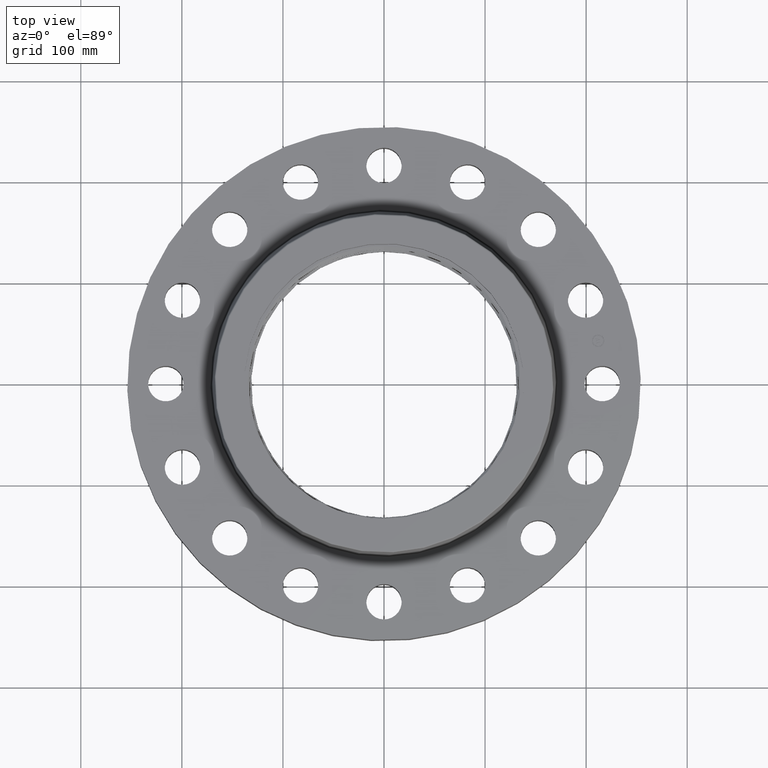
[diagram: clean part render]
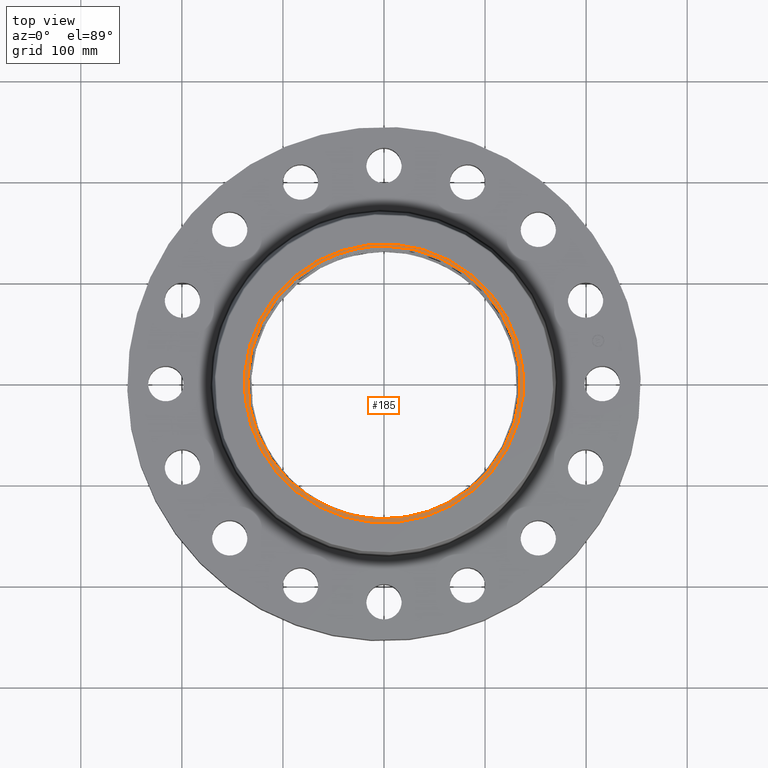
[diagram: same view with one face highlighted and labeled with its STEP entity id]
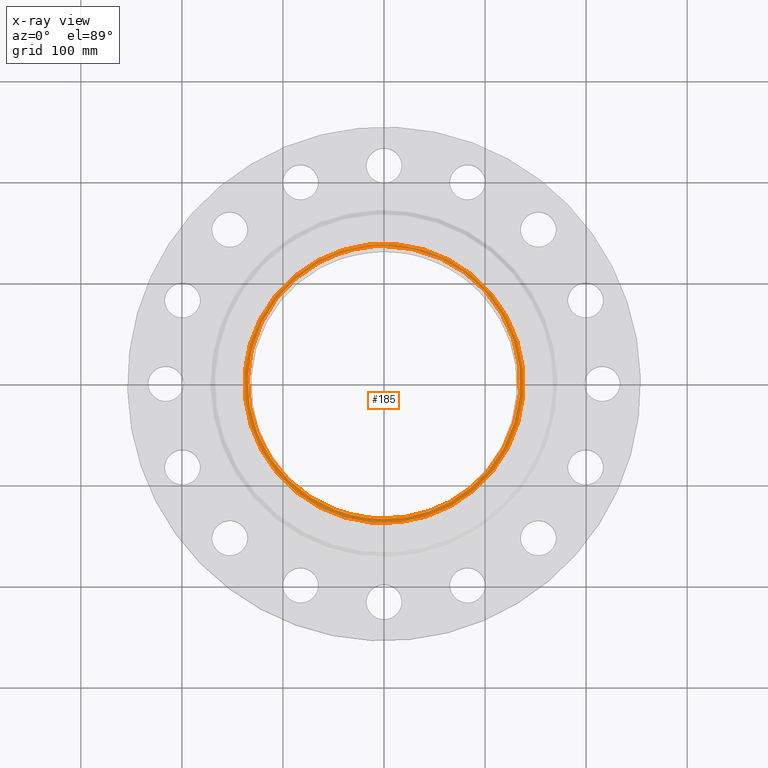
[diagram: x-ray of the same camera — body ghosted, the highlighted face saturated]
A machine part, top view. The second image highlights one B-rep face of the part: STEP entity #185.
The next image is the same camera in x-ray: the body ghosted, the highlighted face saturated — about 0% of this face is hidden behind the body in this view.
In plain terms, the highlighted planar face has unit normal (0, 0, -1).
Its self-contained STEP definition (entity closure, byte-faithful):
#38=AXIS2_PLACEMENT_3D('Plane Axis2P3D',#35,#36,#37) ;
#42=AXIS2_PLACEMENT_3D('Circle Axis2P3D',#40,#41,$) ;
#51=AXIS2_PLACEMENT_3D('Circle Axis2P3D',#49,#50,$) ;
#60=AXIS2_PLACEMENT_3D('Circle Axis2P3D',#58,#59,$) ;
#35=CARTESIAN_POINT('Axis2P3D Location',(4.19611851827E-016,-1.39870617276E-016,2.56000000001)) ;
#40=CARTESIAN_POINT('Axis2P3D Location',(0.,0.,2.56000000001)) ;
#44=CARTESIAN_POINT('Vertex',(-2.60807493002,4.7740491367,2.56000000001)) ;
#46=CARTESIAN_POINT('Vertex',(2.60807493002,-4.7740491367,2.56000000001)) ;
#49=CARTESIAN_POINT('Axis2P3D Location',(0.,0.,2.56000000001)) ;
#58=CARTESIAN_POINT('Axis2P3D Location',(-1.81831802458E-015,2.79741234551E-016,2.56000000001)) ;
#62=CARTESIAN_POINT('Vertex',(-0.179436489631,-5.25866574637,2.56000000001)) ;
#64=CARTESIAN_POINT('Vertex',(-0.623359730176,-5.224670854,2.56000000001)) ;
#68=CARTESIAN_POINT('Control Point',(-2.56317085272,4.69185277853,2.56000000001)) ;
#69=CARTESIAN_POINT('Control Point',(-2.87775737879,4.51742209858,2.56000000001)) ;
#70=CARTESIAN_POINT('Control Point',(-3.17758974618,4.3165801382,2.56000000001)) ;
#71=CARTESIAN_POINT('Control Point',(-3.45968027361,4.09099725058,2.56000000001)) ;
#72=CARTESIAN_POINT('Control Point',(-3.98309082706,3.5946325332,2.56000000001)) ;
#73=CARTESIAN_POINT('Control Point',(-4.41585903566,3.0181412964,2.56000000001)) ;
#74=CARTESIAN_POINT('Control Point',(-4.60737062109,2.71235489063,2.56000000001)) ;
#75=CARTESIAN_POINT('Control Point',(-4.93695383045,2.07165065053,2.56000000001)) ;
#76=CARTESIAN_POINT('Control Point',(-5.15456521833,1.38515508978,2.56000000001)) ;
#77=CARTESIAN_POINT('Control Point',(-5.23409358397,1.03359471423,2.56000000001)) ;
#78=CARTESIAN_POINT('Control Point',(-5.31244544657,0.46914986663,2.56000000001)) ;
#79=CARTESIAN_POINT('Control Point',(-5.31505531281,-0.0992000196723,2.56000000001)) ;
#80=CARTESIAN_POINT('Control Point',(-5.30570287425,-0.308425149888,2.56000000001)) ;
#81=CARTESIAN_POINT('Control Point',(-5.25239820662,-0.874121211982,2.56000000001)) ;
#82=CARTESIAN_POINT('Control Point',(-5.12406407473,-1.42871645794,2.56000000001)) ;
#83=CARTESIAN_POINT('Control Point',(-5.01358414608,-1.77116883304,2.56000000001)) ;
#84=CARTESIAN_POINT('Control Point',(-4.73589493355,-2.43400286605,2.56000000001)) ;
#85=CARTESIAN_POINT('Control Point',(-4.35123418419,-3.04032450773,2.56000000001)) ;
#86=CARTESIAN_POINT('Control Point',(-4.13368783723,-3.32643797058,2.56000000001)) ;
#87=CARTESIAN_POINT('Control Point',(-3.65245650453,-3.85898656853,2.56000000001)) ;
#88=CARTESIAN_POINT('Control Point',(-3.08893609157,-4.30288932199,2.56000000001)) ;
#89=CARTESIAN_POINT('Control Point',(-2.78905809012,-4.50039136727,2.56000000001)) ;
#90=CARTESIAN_POINT('Control Point',(-2.19456884752,-4.82327148341,2.56000000001)) ;
#91=CARTESIAN_POINT('Control Point',(-1.55699674755,-5.04741487256,2.56000000001)) ;
#92=CARTESIAN_POINT('Control Point',(-1.25000430228,-5.12999128328,2.56000000001)) ;
#93=CARTESIAN_POINT('Control Point',(-0.937995133915,-5.18916660162,2.56000000001)) ;
#94=CARTESIAN_POINT('Control Point',(-0.623359713409,-5.22467089185,2.56000000001)) ;
#95=CARTESIAN_POINT('Vertex',(-2.56317085272,4.69185277853,2.56000000001)) ;
#99=CARTESIAN_POINT('Control Point',(-0.420368023062,5.34396634293,2.56000000001)) ;
#100=CARTESIAN_POINT('Control Point',(-0.779229614476,5.31347716995,2.56000000001)) ;
#101=CARTESIAN_POINT('Control Point',(-1.13543306387,5.25285720356,2.56000000001)) ;
#102=CARTESIAN_POINT('Control Point',(-1.48560994799,5.16240251421,2.56000000001)) ;
#103=CARTESIAN_POINT('Control Point',(-1.91296584646,5.01266260018,2.56000000001)) ;
#104=CARTESIAN_POINT('Control Point',(-2.32075759612,4.81957564773,2.56000000001)) ;
#105=CARTESIAN_POINT('Control Point',(-2.40248069513,4.77872186523,2.56000000001)) ;
#106=CARTESIAN_POINT('Control Point',(-2.48330130025,4.73613852885,2.56000000001)) ;
#107=CARTESIAN_POINT('Control Point',(-2.56317085272,4.69185277853,2.56000000001)) ;
#108=CARTESIAN_POINT('Vertex',(-0.420368023062,5.34396634293,2.56000000001)) ;
#112=CARTESIAN_POINT('Control Point',(-0.420368023062,5.34396634293,2.56000000001)) ;
#113=CARTESIAN_POINT('Control Point',(-0.336439627644,5.35009050216,2.56000000001)) ;
#114=CARTESIAN_POINT('Control Point',(-0.252395449989,5.35456737602,2.56000000001)) ;
#115=CARTESIAN_POINT('Control Point',(-0.168278606409,5.35739391948,2.56000000001)) ;
#116=CARTESIAN_POINT('Control Point',(-0.0841323578326,5.35856877897,2.56000000001)) ;
#117=CARTESIAN_POINT('Control Point',(5.07030987624E-015,5.35809230663,2.56000000001)) ;
#118=CARTESIAN_POINT('Vertex',(5.03534222192E-015,5.35809230663,2.56000000001)) ;
#122=CARTESIAN_POINT('Control Point',(4.19611851827E-016,5.35809230663,2.56000000001)) ;
#123=CARTESIAN_POINT('Control Point',(0.360120706719,5.35605281111,2.56000000001)) ;
#124=CARTESIAN_POINT('Control Point',(0.719986866898,5.32375790016,2.56000000001)) ;
#125=CARTESIAN_POINT('Control Point',(1.07615597277,5.26124271699,2.56000000001)) ;
#126=CARTESIAN_POINT('Control Point',(1.77448395915,5.07697577876,2.56000000001)) ;
#127=CARTESIAN_POINT('Control Point',(2.4317287646,4.77891164462,2.56000000001)) ;
#128=CARTESIAN_POINT('Control Point',(2.74698094511,4.60253601248,2.56000000001)) ;
#129=CARTESIAN_POINT('Control Point',(3.34467327858,4.19853796471,2.56000000001)) ;
#130=CARTESIAN_POINT('Control Point',(3.86617494344,3.7005988074,2.56000000001)) ;
#131=CARTESIAN_POINT('Control Point',(4.1052849498,3.430237948,2.56000000001)) ;
#132=CARTESIAN_POINT('Control Point',(4.53551504628,2.85206382683,2.56000000001)) ;
#133=CARTESIAN_POINT('Control Point',(4.86287627004,2.21020049061,2.56000000001)) ;
#134=CARTESIAN_POINT('Control Point',(4.9990229883,1.87629507422,2.56000000001)) ;
#135=CARTESIAN_POINT('Control Point',(5.16894708468,1.33206737634,2.56000000001)) ;
#136=CARTESIAN_POINT('Control Point',(5.26479775588,0.771496974678,2.56000000001)) ;
#137=CARTESIAN_POINT('Control Point',(5.28990456951,0.563470763903,2.56000000001)) ;
#138=CARTESIAN_POINT('Control Point',(5.33014888019,-0.00355911527704,2.56000000001)) ;
#139=CARTESIAN_POINT('Control Point',(5.29456379312,-0.57197445803,2.56000000001)) ;
#140=CARTESIAN_POINT('Control Point',(5.24177853205,-0.928115136011,2.56000000001)) ;
#141=CARTESIAN_POINT('Control Point',(5.07663412025,-1.62790554198,2.56000000001)) ;
#142=CARTESIAN_POINT('Control Point',(4.7966345318,-2.28970467228,2.56000000001)) ;
#143=CARTESIAN_POINT('Control Point',(4.62896733762,-2.60792332405,2.56000000001)) ;
#144=CARTESIAN_POINT('Control Point',(4.24159766422,-3.21277444581,2.56000000001)) ;
#145=CARTESIAN_POINT('Control Point',(3.75836784015,-3.74382070642,2.56000000001)) ;
#146=CARTESIAN_POINT('Control Point',(3.49487689042,-3.98818056718,2.56000000001)) ;
#147=CARTESIAN_POINT('Control Point',(3.14162002488,-4.26401296397,2.56000000001)) ;
#148=CARTESIAN_POINT('Control Point',(2.76264269274,-4.50027430188,2.56000000001)) ;
#149=CARTESIAN_POINT('Control Point',(2.6861364171,-4.54575982619,2.56000000001)) ;
#150=CARTESIAN_POINT('Control Point',(2.60869858592,-4.58961762108,2.56000000001)) ;
#151=CARTESIAN_POINT('Control Point',(2.53037610617,-4.63182251866,2.56000000001)) ;
#152=CARTESIAN_POINT('Vertex',(2.53037610617,-4.63182251866,2.56000000001)) ;
#156=CARTESIAN_POINT('Control Point',(2.53037610617,-4.63182251866,2.56000000001)) ;
#157=CARTESIAN_POINT('Control Point',(2.21577460945,-4.80134886649,2.56000000001)) ;
#158=CARTESIAN_POINT('Control Point',(1.88690078925,-4.9442062474,2.56000000001)) ;
#159=CARTESIAN_POINT('Control Point',(1.54676293068,-5.05878315689,2.56000000001)) ;
#160=CARTESIAN_POINT('Control Point',(1.03300884983,-5.18452351719,2.56000000001)) ;
#161=CARTESIAN_POINT('Control Point',(0.509229083474,-5.24514879591,2.56000000001)) ;
#162=CARTESIAN_POINT('Control Point',(0.339673080778,-5.25787051627,2.56000000001)) ;
#163=CARTESIAN_POINT('Control Point',(0.169807065613,-5.26374028276,2.56000000001)) ;
#164=CARTESIAN_POINT('Control Point',(-8.43431951053E-008,-5.26276117962,2.56000000001)) ;
#165=CARTESIAN_POINT('Vertex',(-8.43431954549E-008,-5.26276117962,2.56000000001)) ;
#169=CARTESIAN_POINT('Control Point',(-0.179436487459,-5.25866575197,2.56000000001)) ;
#170=CARTESIAN_POINT('Control Point',(-0.143568621467,-5.26009672734,2.56000000001)) ;
#171=CARTESIAN_POINT('Control Point',(-0.107687518601,-5.26122188773,2.56000000001)) ;
#172=CARTESIAN_POINT('Control Point',(-0.0717967045122,-5.26204107303,2.56000000001)) ;
#173=CARTESIAN_POINT('Control Point',(-0.0358997128723,-5.26255418343,2.56000000001)) ;
#174=CARTESIAN_POINT('Control Point',(-8.43431917134E-008,-5.26276117962,2.56000000001)) ;
#36=DIRECTION('Axis2P3D Direction',(0.,0.,-0.0393700787402)) ;
#37=DIRECTION('Axis2P3D XDirection',(0.,0.0393700787402,0.)) ;
#41=DIRECTION('Axis2P3D Direction',(0.,0.,-0.0393700787402)) ;
#50=DIRECTION('Axis2P3D Direction',(0.,0.,-0.0393700787402)) ;
#59=DIRECTION('Axis2P3D Direction',(0.,0.,-0.0393700787402)) ;
#55=ORIENTED_EDGE('',*,*,#48,.T.) ;
#56=ORIENTED_EDGE('',*,*,#53,.T.) ;
#177=ORIENTED_EDGE('',*,*,#66,.T.) ;
#178=ORIENTED_EDGE('',*,*,#97,.F.) ;
#179=ORIENTED_EDGE('',*,*,#110,.F.) ;
#180=ORIENTED_EDGE('',*,*,#120,.T.) ;
#181=ORIENTED_EDGE('',*,*,#154,.T.) ;
#182=ORIENTED_EDGE('',*,*,#167,.T.) ;
#183=ORIENTED_EDGE('',*,*,#175,.F.) ;
#184=FACE_BOUND('',#176,.T.) ;
#185=ADVANCED_FACE('PartBody',(#57,#184),#39,.F.) ;
#67=B_SPLINE_CURVE_WITH_KNOTS('',5,(#68,#69,#70,#71,#72,#73,#74,#75,#76,#77,#78,#79,#80,#81,#82,#83,#84,#85,#86,#87,#88,#89,#90,#91,#92,#93,#94),.UNSPECIFIED.,.F.,.U.,(6,3,3,3,3,3,3,3,6),(0.,64.3929237799,128.803755706,193.210995766,230.774122122,295.179189404,359.62023069,424.071343852,481.221424391),.UNSPECIFIED.) ;
#98=B_SPLINE_CURVE_WITH_KNOTS('',5,(#99,#100,#101,#102,#103,#104,#105,#106,#107),.UNSPECIFIED.,.F.,.U.,(6,3,6),(0.,64.3868996716,80.7354511139),.UNSPECIFIED.) ;
#111=B_SPLINE_CURVE_WITH_KNOTS('',5,(#112,#113,#114,#115,#116,#117),.UNSPECIFIED.,.F.,.U.,(6,6),(0.,15.0442467796),.UNSPECIFIED.) ;
#121=B_SPLINE_CURVE_WITH_KNOTS('',5,(#122,#123,#124,#125,#126,#127,#128,#129,#130,#131,#132,#133,#134,#135,#136,#137,#138,#139,#140,#141,#142,#143,#144,#145,#146,#147,#148,#149,#150,#151),.UNSPECIFIED.,.F.,.U.,(6,3,3,3,3,3,3,3,3,6),(0.,64.3954944555,128.823087859,193.262615743,257.670789111,295.228516788,359.616488433,424.017825964,488.407461051,504.434201214),.UNSPECIFIED.) ;
#155=B_SPLINE_CURVE_WITH_KNOTS('',5,(#156,#157,#158,#159,#160,#161,#162,#163,#164),.UNSPECIFIED.,.F.,.U.,(6,3,6),(0.,64.3753422886,95.007780959),.UNSPECIFIED.) ;
#168=B_SPLINE_CURVE_WITH_KNOTS('',5,(#169,#170,#171,#172,#173,#174),.UNSPECIFIED.,.F.,.U.,(6,6),(8.13677920341,14.6129091514),.UNSPECIFIED.) ;
#43=CIRCLE('generated circle',#42,5.44000000002) ;
#52=CIRCLE('generated circle',#51,5.44000000002) ;
#61=CIRCLE('generated circle',#60,5.26172622681) ;
#48=EDGE_CURVE('',#45,#47,#43,.F.) ;
#53=EDGE_CURVE('',#47,#45,#52,.F.) ;
#66=EDGE_CURVE('',#63,#65,#61,.T.) ;
#97=EDGE_CURVE('',#96,#65,#67,.T.) ;
#110=EDGE_CURVE('',#109,#96,#98,.T.) ;
#120=EDGE_CURVE('',#109,#119,#111,.T.) ;
#154=EDGE_CURVE('',#119,#153,#121,.T.) ;
#167=EDGE_CURVE('',#153,#166,#155,.T.) ;
#175=EDGE_CURVE('',#63,#166,#168,.T.) ;
#54=EDGE_LOOP('',(#55,#56)) ;
#176=EDGE_LOOP('',(#177,#178,#179,#180,#181,#182,#183)) ;
#57=FACE_OUTER_BOUND('',#54,.T.) ;
#39=PLANE('',#38) ;
#45=VERTEX_POINT('',#44) ;
#47=VERTEX_POINT('',#46) ;
#63=VERTEX_POINT('',#62) ;
#65=VERTEX_POINT('',#64) ;
#96=VERTEX_POINT('',#95) ;
#109=VERTEX_POINT('',#108) ;
#119=VERTEX_POINT('',#118) ;
#153=VERTEX_POINT('',#152) ;
#166=VERTEX_POINT('',#165) ;